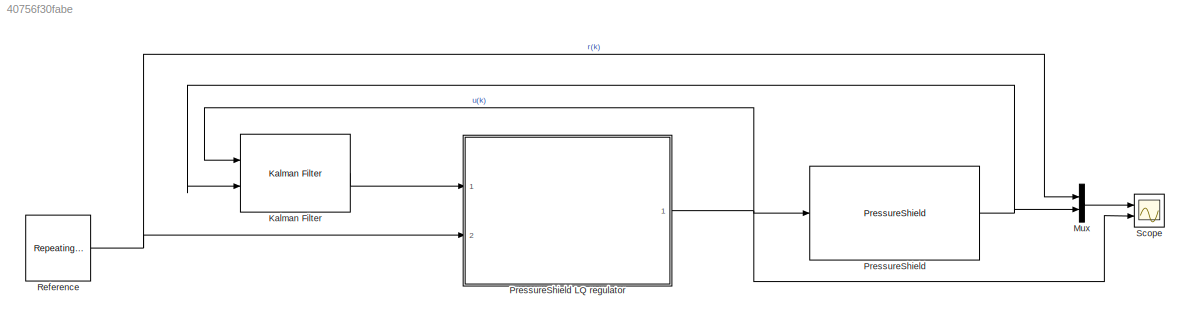
MODEL slx_40756f30fabe
KIND model
CONFIG AbsTol = auto
CONFIG EnableMultiTasking = on
CONFIG FixedStep = 0.001
CONFIG MaxStep = auto
CONFIG MinStep = auto
CONFIG RelTol = 1e-3
CONFIG SampleTimeConstraint = Unconstrained
CONFIG Solver = FixedStepDiscrete
CONFIG SolverName = FixedStepDiscrete
CONFIG StartTime = 0.0
CONFIG StopTime = 55
BLOCK [Reference] Kalman Filter  REF=ctrlSharedLib/Kalman Filter
  Ports = [2, 1]
  SourceBlock = ctrlSharedLib/Kalman Filter
  SourceProductBaseCode = CT,ID
  SourceType = ctrlKalmanFilter
BLOCK [Mux] Mux
  DisplayOption = bar
  Inputs = 2
  Ports = [2, 1]
BLOCK [Reference] PressureShield   REF=PressureLibrary/PressureShield


  Ports = [1, 1]
  SourceBlock = PressureLibrary/PressureShield
  SourceType = SubSystem
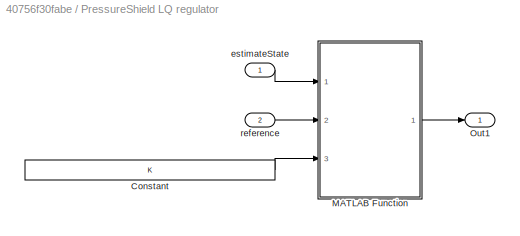
BLOCK [SubSystem] PressureShield LQ regulator
  Ports = [2, 1]
  RequestExecContextInheritance = off
BLOCK [Constant] PressureShield LQ regulator/Constant
  SampleTime = Ts
  Value = K
  VectorParams1D = off
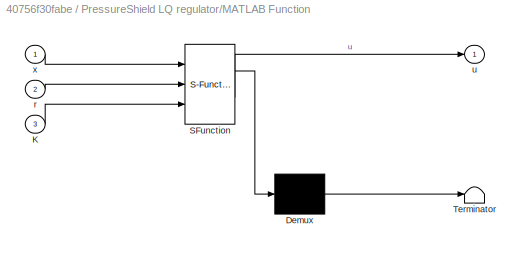
BLOCK [SubSystem] PressureShield LQ regulator/MATLAB Function
  ErrorFcn = Stateflow.Translate.translate
  PermitHierarchicalResolution = ExplicitOnly
  Ports = [3, 1]
  RequestExecContextInheritance = off
  SFBlockType = MATLAB Function
  SystemSampleTime = Ts
  TreatAsAtomicUnit = on
BLOCK [Demux] PressureShield LQ regulator/MATLAB Function/ Demux 
  Outputs = 1
  Ports = [1, 1]
BLOCK [S-Function] PressureShield LQ regulator/MATLAB Function/ SFunction 
  EnableBusSupport = off
  FunctionName = sf_sfun
  PortCounts = [3 2]
  Ports = [3, 2]
  SFcnIsStateOwnerBlock = off
  SFunctionDeploymentMode = off
  Tag = Stateflow S-Function PressureShield_LQ 2
BLOCK [Terminator] PressureShield LQ regulator/MATLAB Function/ Terminator 
BLOCK [Inport] PressureShield LQ regulator/MATLAB Function/K
  Port = 3
BLOCK [Inport] PressureShield LQ regulator/MATLAB Function/r
  Port = 2
BLOCK [Outport] PressureShield LQ regulator/MATLAB Function/u
BLOCK [Inport] PressureShield LQ regulator/MATLAB Function/x
BLOCK [Outport] PressureShield LQ regulator/Out1
BLOCK [Inport] PressureShield LQ regulator/estimateState
BLOCK [Inport] PressureShield LQ regulator/reference
  Port = 2
BLOCK [Reference] Reference  REF=simulink/Sources/Repeating
Sequence
Stair
  Ports = [0, 1]
  SourceBlock = simulink/Sources/Repeating\nSequence\nStair
  SourceProductBaseCode = SL
  SourceType = Repeating Sequence Stair
BLOCK [Scope] Scope
  Floating = off
  NumInputPorts = 2
  Ports = [2]
  ScopeSpecificationString = Simulink.scopes.TimeScopeBlockCfg('CurrentConfiguration', extmgr.ConfigurationSet(extmgr.Configuration('Core','General UI',true),extmgr.Configuration('Core','Source UI',true),extmgr.Configuration('Sources','WiredSimulink',true),extmgr.Configuration('Visuals','Time Domain',true,'SerializedDisplays',{struct('MinYLimReal','-78.1699','MaxYLimReal','115.35221','YLabelReal','','MinYLimMag','0.00000','Ma...<+1468ch>
LINE Kalman Filter:1 -> PressureShield LQ regulator:1
LINE Mux:1 -> Scope:1
NET PressureShield :1 -> Kalman Filter:2, Mux:2
LINE PressureShield LQ regulator/Constant:1 -> PressureShield LQ regulator/MATLAB Function:3
LINE PressureShield LQ regulator/MATLAB Function:1 -> PressureShield LQ regulator/Out1:1
LINE PressureShield LQ regulator/estimateState:1 -> PressureShield LQ regulator/MATLAB Function:1
LINE PressureShield LQ regulator/reference:1 -> PressureShield LQ regulator/MATLAB Function:2
NET PressureShield LQ regulator:1 -> Kalman Filter:1, PressureShield :1, Scope:2
NET Reference:1 -> Mux:1, PressureShield LQ regulator:2
note: NET lines group one-source signal fan-out (src -> all destinations, sorted); 1:1 wires keep LINE
CHART PressureShield LQ regulator/MATLAB Function states=1 transitions=1
  STATE_LABEL 'eML_blk_kernel()'
  STATE_LABEL 'SCRIPT:\nfunction u = fcn(x, r, K)\npersistent xI;\nif isempty(xI)    \n    xI = 0;\nend\nxI = xI + r - x(1) - r*0.35;\nx = [x; xI];\nu = -K * (x - [r;0;0]);\n'
